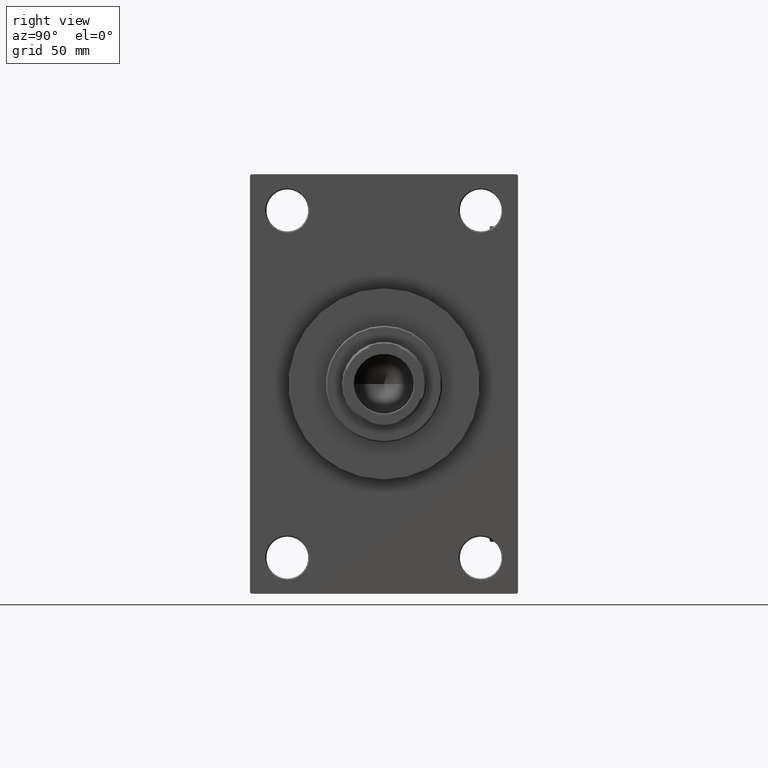
[diagram: clean part render]
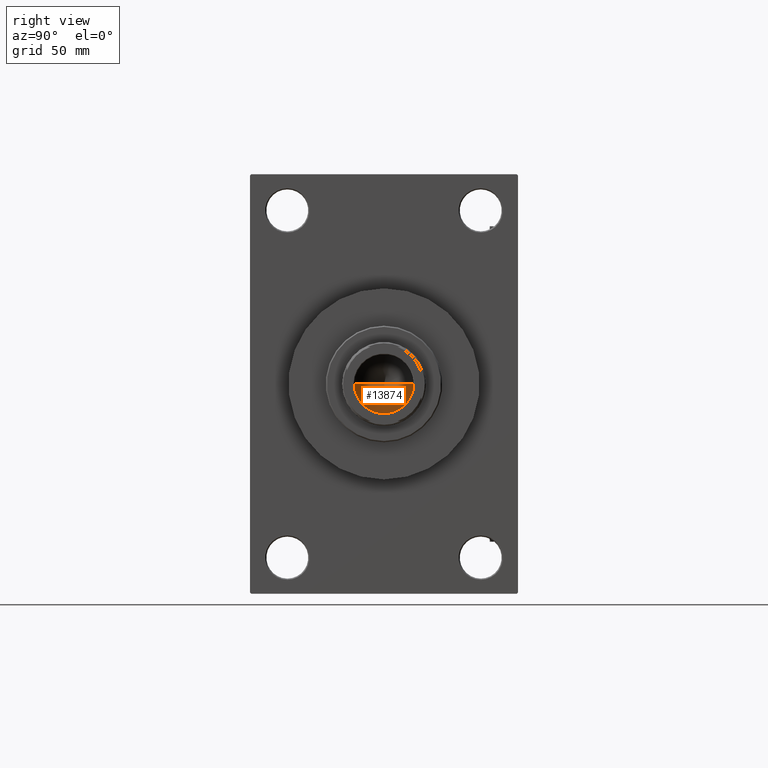
[diagram: same view with one face highlighted and labeled with its STEP entity id]
A machine part, right view. The second image highlights one B-rep face of the part: STEP entity #13874.
In plain terms, the highlighted conical surface has half-angle 59 deg.
Its self-contained STEP definition (entity closure, byte-faithful):
#1207 = VECTOR ( 'NONE', #22476, 1000.000000000000000 ) ;
#1446 = ORIENTED_EDGE ( 'NONE', *, *, #24772, .T. ) ;
#4310 = DIRECTION ( 'NONE',  ( 0.8571673007021117785, 0.000000000000000000, 0.5150380749100550437 ) ) ;
#7692 = VECTOR ( 'NONE', #4310, 1000.000000000000000 ) ;
#8310 = EDGE_CURVE ( 'NONE', #44574, #29258, #49207, .T. ) ;
#8373 = EDGE_CURVE ( 'NONE', #44574, #41666, #24197, .T. ) ;
#8709 = CARTESIAN_POINT ( 'NONE',  ( -1.410643066818227497E-14, 0.000000000000000000, 113.3390271073986071 ) ) ;
#9140 = ORIENTED_EDGE ( 'NONE', *, *, #8310, .F. ) ;
#12874 = CARTESIAN_POINT ( 'NONE',  ( 12.74999999999998934, 0.000000000000000000, 121.0000000000000142 ) ) ;
#13874 = ADVANCED_FACE ( 'NONE', ( #48740 ), #17534, .F. ) ;
#14679 = CARTESIAN_POINT ( 'NONE',  ( -12.74999999999998934, 1.561424668912873928E-15, 121.0000000000000142 ) ) ;
#15254 = ORIENTED_EDGE ( 'NONE', *, *, #8373, .T. ) ;
#17321 = AXIS2_PLACEMENT_3D ( 'NONE', #45101, #29453, #38025 ) ;
#17534 = CONICAL_SURFACE ( 'NONE', #24756, 12.74999999999998934, 1.029744258676653423 ) ;
#18221 = DIRECTION ( 'NONE',  ( -0.000000000000000000, -0.000000000000000000, 1.000000000000000000 ) ) ;
#22245 = CARTESIAN_POINT ( 'NONE',  ( 0.000000000000000000, 0.000000000000000000, 121.0000000000000142 ) ) ;
#22300 = CARTESIAN_POINT ( 'NONE',  ( -12.74999999999998934, 1.561424668912873928E-15, 121.0000000000000142 ) ) ;
#22476 = DIRECTION ( 'NONE',  ( -0.8571673007021117785, 1.049727191138617956E-16, 0.5150380749100550437 ) ) ;
#24197 = LINE ( 'NONE', #12874, #7692 ) ;
#24756 = AXIS2_PLACEMENT_3D ( 'NONE', #22245, #18221, #41413 ) ;
#24772 = EDGE_CURVE ( 'NONE', #41666, #29258, #35829, .T. ) ;
#29258 = VERTEX_POINT ( 'NONE', #22300 ) ;
#29453 = DIRECTION ( 'NONE',  ( -0.000000000000000000, -0.000000000000000000, 1.000000000000000000 ) ) ;
#35829 = CIRCLE ( 'NONE', #17321, 12.74999999999998934 ) ;
#37132 = CARTESIAN_POINT ( 'NONE',  ( 12.74999999999998934, 0.000000000000000000, 121.0000000000000142 ) ) ;
#38025 = DIRECTION ( 'NONE',  ( 1.000000000000000000, 0.000000000000000000, 0.000000000000000000 ) ) ;
#41413 = DIRECTION ( 'NONE',  ( 1.000000000000000000, 0.000000000000000000, 0.000000000000000000 ) ) ;
#41666 = VERTEX_POINT ( 'NONE', #37132 ) ;
#44574 = VERTEX_POINT ( 'NONE', #8709 ) ;
#45101 = CARTESIAN_POINT ( 'NONE',  ( 0.000000000000000000, 0.000000000000000000, 121.0000000000000142 ) ) ;
#48705 = EDGE_LOOP ( 'NONE', ( #9140, #15254, #1446 ) ) ;
#48740 = FACE_OUTER_BOUND ( 'NONE', #48705, .T. ) ;
#49207 = LINE ( 'NONE', #14679, #1207 ) ;